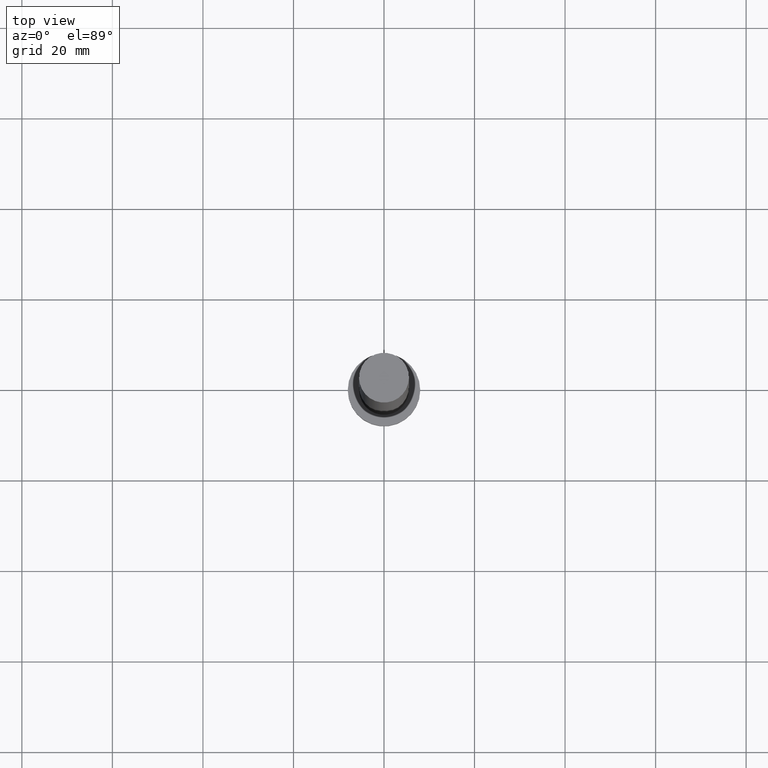
[diagram: clean part render]
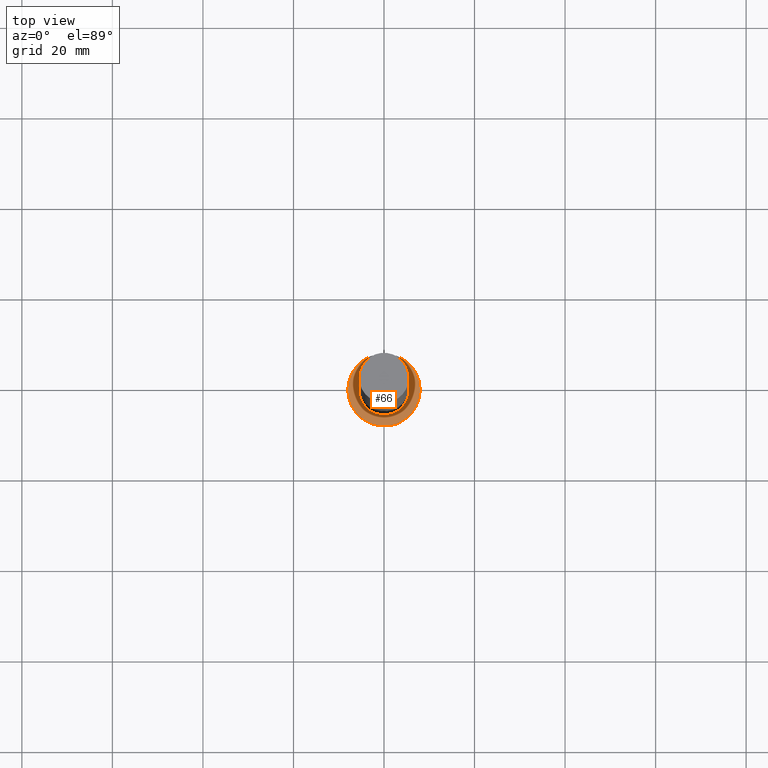
[diagram: same view with one face highlighted and labeled with its STEP entity id]
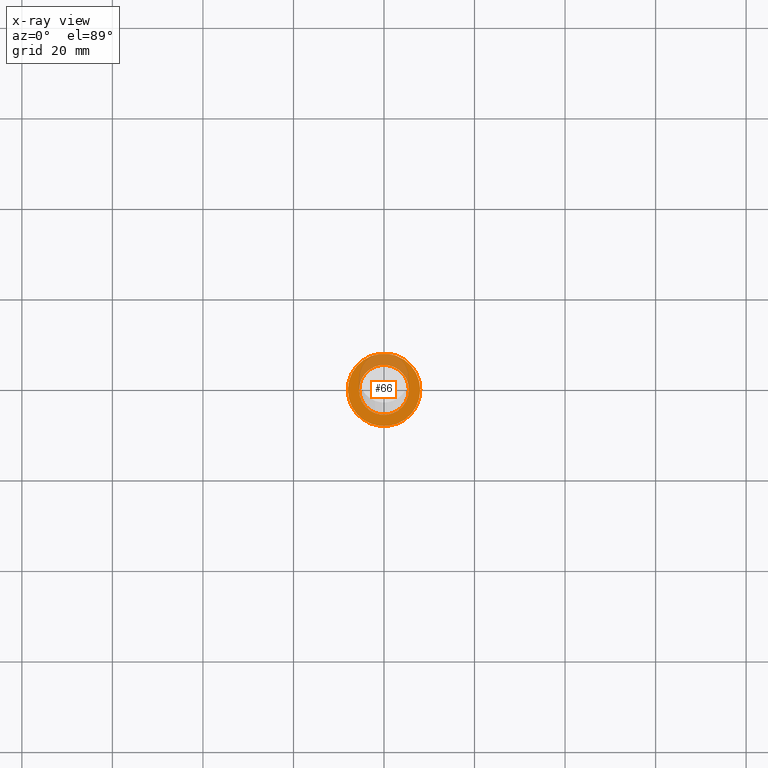
[diagram: x-ray of the same camera — body ghosted, the highlighted face saturated]
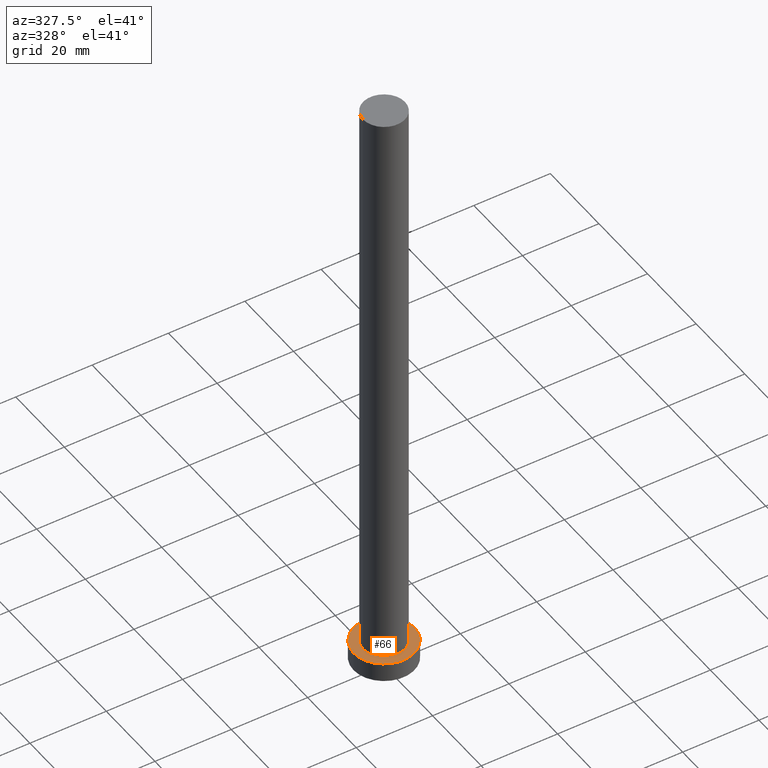
[diagram: same view with one face highlighted and labeled with its STEP entity id]
A machine part, top view. The second image highlights one B-rep face of the part: STEP entity #66.
The next image is the same camera in x-ray: the body ghosted, the highlighted face saturated — about 28% of this face is hidden behind the body in this view.
A second angle (auxiliary view) of the same face is appended — the face is thin or edge-on in the first view.
In plain terms, the highlighted planar face has unit normal (0, 0, 1).
Its self-contained STEP definition (entity closure, byte-faithful):
#5 = CARTESIAN_POINT ( 'NONE',  ( -8.000000000000000000, 0.000000000000000000, 5.000000000000000000 ) ) ;
#17 = VERTEX_POINT ( 'NONE', #5 ) ;
#30 = ORIENTED_EDGE ( 'NONE', *, *, #134, .T. ) ;
#36 = AXIS2_PLACEMENT_3D ( 'NONE', #226, #142, #158 ) ;
#37 = EDGE_CURVE ( 'NONE', #17, #71, #112, .T. ) ;
#40 = CARTESIAN_POINT ( 'NONE',  ( 0.000000000000000000, 0.000000000000000000, 5.000000000000000000 ) ) ;
#48 = VERTEX_POINT ( 'NONE', #206 ) ;
#53 = ORIENTED_EDGE ( 'NONE', *, *, #37, .T. ) ;
#62 = AXIS2_PLACEMENT_3D ( 'NONE', #40, #145, #77 ) ;
#66 = ADVANCED_FACE ( 'NONE', ( #106, #235 ), #154, .T. ) ;
#71 = VERTEX_POINT ( 'NONE', #193 ) ;
#77 = DIRECTION ( 'NONE',  ( 1.000000000000000000, 0.000000000000000000, 0.000000000000000000 ) ) ;
#83 = AXIS2_PLACEMENT_3D ( 'NONE', #135, #141, #222 ) ;
#84 = AXIS2_PLACEMENT_3D ( 'NONE', #111, #113, #172 ) ;
#106 = FACE_BOUND ( 'NONE', #186, .T. ) ;
#111 = CARTESIAN_POINT ( 'NONE',  ( 0.000000000000000000, 0.000000000000000000, 5.000000000000000000 ) ) ;
#112 = CIRCLE ( 'NONE', #36, 8.000000000000000000 ) ;
#113 = DIRECTION ( 'NONE',  ( 0.000000000000000000, 0.000000000000000000, 1.000000000000000000 ) ) ;
#115 = DIRECTION ( 'NONE',  ( 1.000000000000000000, 0.000000000000000000, 0.000000000000000000 ) ) ;
#134 = EDGE_CURVE ( 'NONE', #71, #17, #177, .T. ) ;
#135 = CARTESIAN_POINT ( 'NONE',  ( 0.000000000000000000, 0.000000000000000000, 5.000000000000000000 ) ) ;
#137 = CARTESIAN_POINT ( 'NONE',  ( 0.000000000000000000, 0.000000000000000000, 5.000000000000000000 ) ) ;
#141 = DIRECTION ( 'NONE',  ( 0.000000000000000000, 0.000000000000000000, 1.000000000000000000 ) ) ;
#142 = DIRECTION ( 'NONE',  ( 0.000000000000000000, 0.000000000000000000, 1.000000000000000000 ) ) ;
#144 = CIRCLE ( 'NONE', #62, 5.500000000000000000 ) ;
#145 = DIRECTION ( 'NONE',  ( 0.000000000000000000, 0.000000000000000000, 1.000000000000000000 ) ) ;
#154 = PLANE ( 'NONE',  #84 ) ;
#158 = DIRECTION ( 'NONE',  ( 1.000000000000000000, 0.000000000000000000, 0.000000000000000000 ) ) ;
#171 = EDGE_LOOP ( 'NONE', ( #53, #30 ) ) ;
#172 = DIRECTION ( 'NONE',  ( 1.000000000000000000, 0.000000000000000000, -0.000000000000000000 ) ) ;
#177 = CIRCLE ( 'NONE', #236, 8.000000000000000000 ) ;
#180 = CARTESIAN_POINT ( 'NONE',  ( 5.500000000000000000, 6.735557395310442023E-16, 5.000000000000000000 ) ) ;
#186 = EDGE_LOOP ( 'NONE', ( #215, #212 ) ) ;
#193 = CARTESIAN_POINT ( 'NONE',  ( 8.000000000000000000, 9.797174393178825657E-16, 5.000000000000000000 ) ) ;
#206 = CARTESIAN_POINT ( 'NONE',  ( -5.500000000000000000, 0.000000000000000000, 5.000000000000000000 ) ) ;
#212 = ORIENTED_EDGE ( 'NONE', *, *, #239, .F. ) ;
#214 = CIRCLE ( 'NONE', #83, 5.500000000000000000 ) ;
#215 = ORIENTED_EDGE ( 'NONE', *, *, #249, .F. ) ;
#218 = DIRECTION ( 'NONE',  ( 0.000000000000000000, 0.000000000000000000, 1.000000000000000000 ) ) ;
#222 = DIRECTION ( 'NONE',  ( 1.000000000000000000, 0.000000000000000000, 0.000000000000000000 ) ) ;
#226 = CARTESIAN_POINT ( 'NONE',  ( 0.000000000000000000, 0.000000000000000000, 5.000000000000000000 ) ) ;
#235 = FACE_OUTER_BOUND ( 'NONE', #171, .T. ) ;
#236 = AXIS2_PLACEMENT_3D ( 'NONE', #137, #218, #115 ) ;
#239 = EDGE_CURVE ( 'NONE', #254, #48, #214, .T. ) ;
#249 = EDGE_CURVE ( 'NONE', #48, #254, #144, .T. ) ;
#254 = VERTEX_POINT ( 'NONE', #180 ) ;